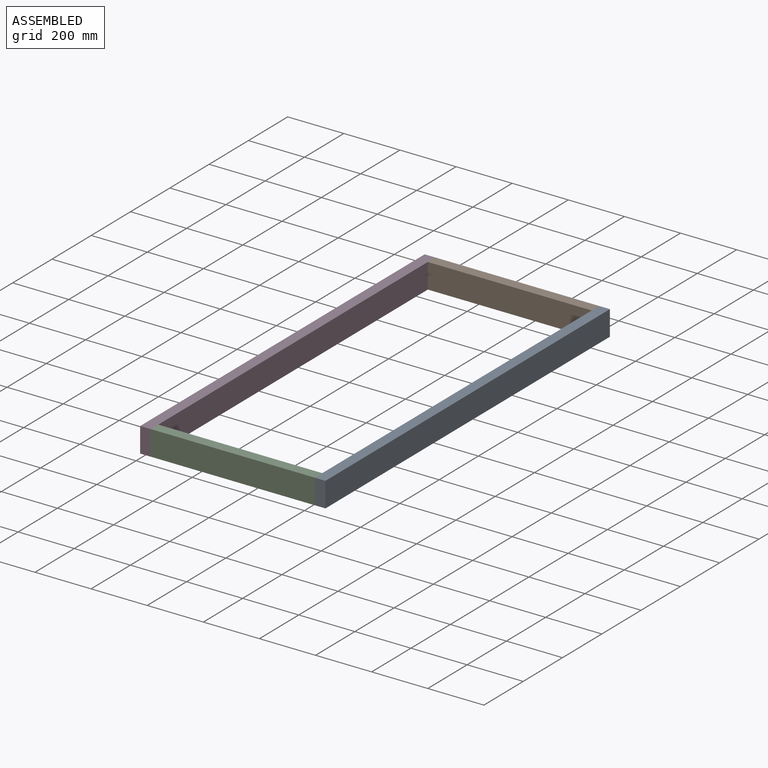
[diagram: assembled view]
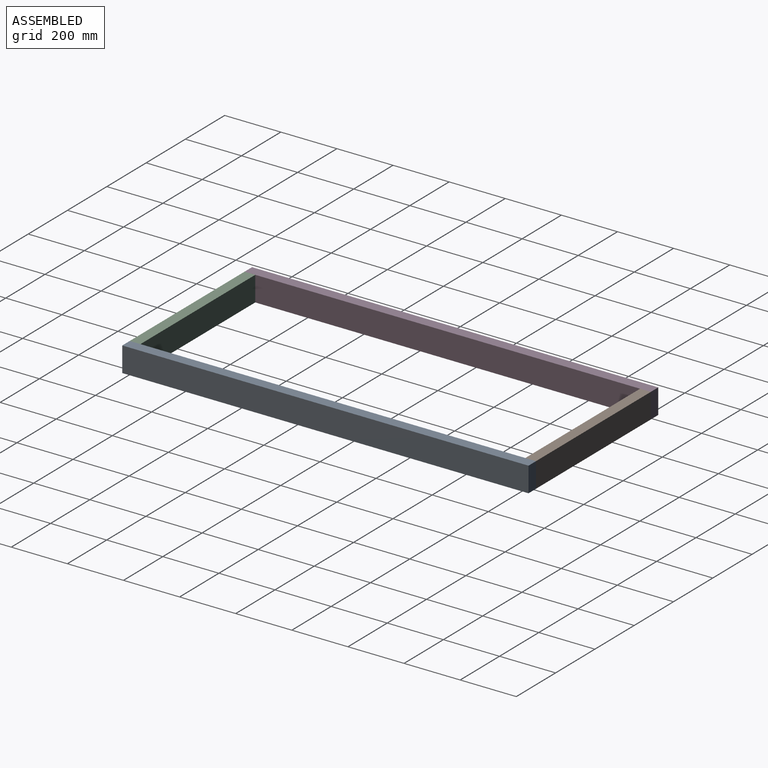
[diagram: assembled view, second angle]
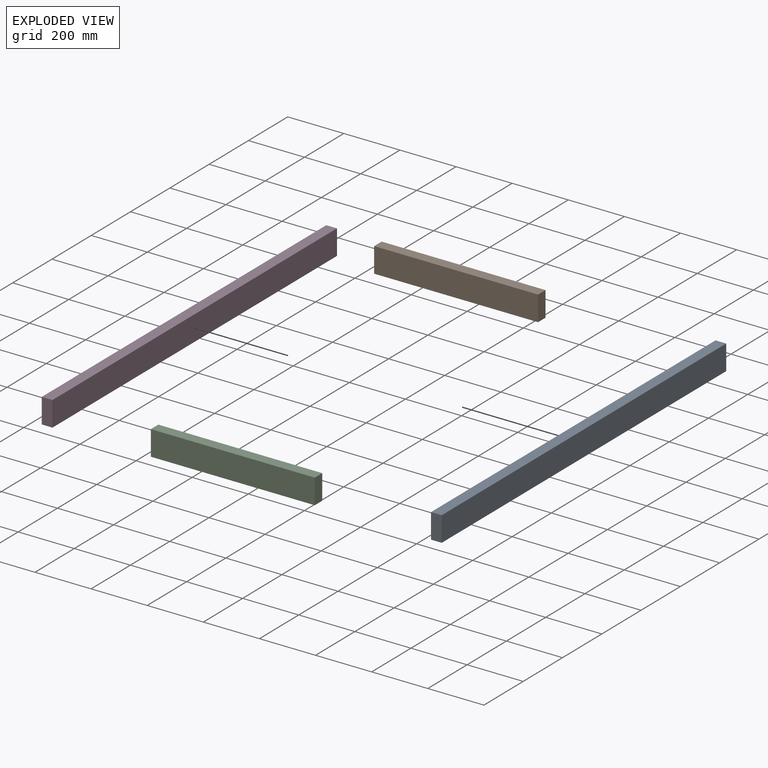
[diagram: exploded view]
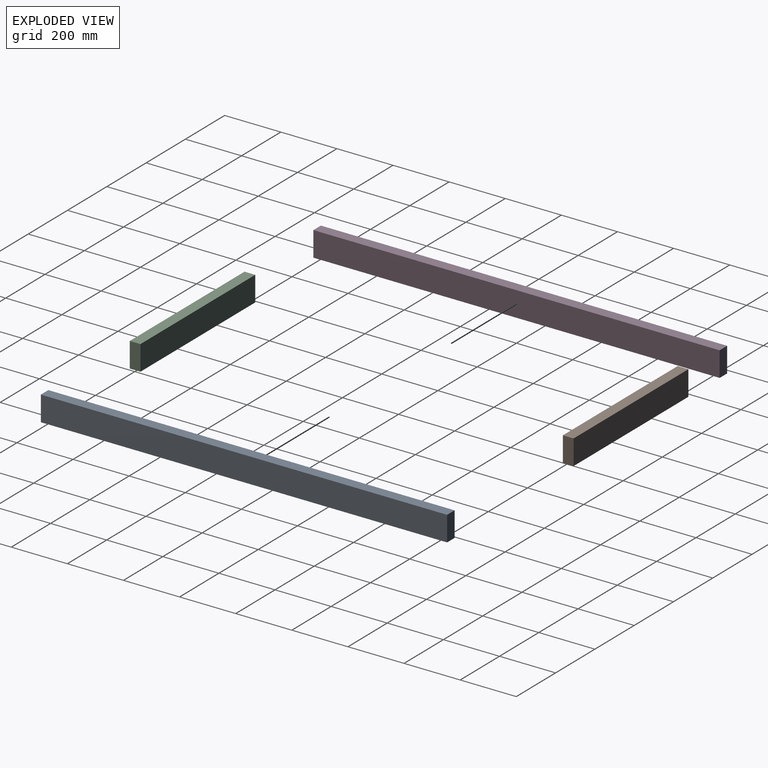
[diagram: exploded view, second angle]
ASSEMBLY  parts=4 mates=3
PART A: 6 faces, bbox 38.1x1447.8x88.9 mm
  f0: plane 88.9x38.1mm, normal (0,-1,0), area 3387.1mm2, adj f1,f3,f4,f5
  f1: plane 1447.8x88.9mm, normal (1,0,0), area 128709.4mm2, adj f0,f2,f4,f5
  f2: plane 88.9x38.1mm, normal (0,1,0), area 3387.1mm2, adj f1,f3,f4,f5
  f3: plane 1447.8x88.9mm, normal (-1,0,0), area 128709.4mm2, adj f0,f2,f4,f5
  f4: plane 1447.8x38.1mm, normal (0,0,1), area 55161.2mm2, adj f0,f1,f2,f3
  f5: plane 1447.8x38.1mm, normal (0,0,-1), area 55161.2mm2, adj f0,f1,f2,f3
PART B: 6 faces, bbox 584.2x38.1x88.9 mm
  f0: plane 584.2x88.9mm, normal (0,1,0), area 51935.4mm2, adj f1,f3,f4,f5
  f1: plane 584.2x38.1mm, normal (0,0,1), area 22258mm2, adj f0,f2,f4,f5
  f2: plane 584.2x88.9mm, normal (0,-1,0), area 51935.4mm2, adj f1,f3,f4,f5
  f3: plane 584.2x38.1mm, normal (0,0,-1), area 22258mm2, adj f0,f2,f4,f5
  f4: plane 88.9x38.1mm, normal (1,0,0), area 3387.1mm2, adj f0,f1,f2,f3
  f5: plane 88.9x38.1mm, normal (-1,0,0), area 3387.1mm2, adj f0,f1,f2,f3
PART C: same geometry as B
PART D: same geometry as A
PLACE A t=(-347.7,-270.59,434.16)mm
PLACE B t=(-658.85,434.26,434.16)mm
PLACE C t=(-658.85,-975.44,434.16)mm
PLACE D t=(-970,-270.59,434.16)mm
MATE fastened A.f3 <-> B.f4  axis (-1,0,0) through (-366.75,453.31,478.61)mm
MATE fastened C.f4 <-> A.f3  axis (1,0,0) through (-366.75,-994.49,478.61)mm
MATE fastened B.f5 <-> D.f1  axis (-1,0,0) through (-950.95,453.31,478.61)mm
